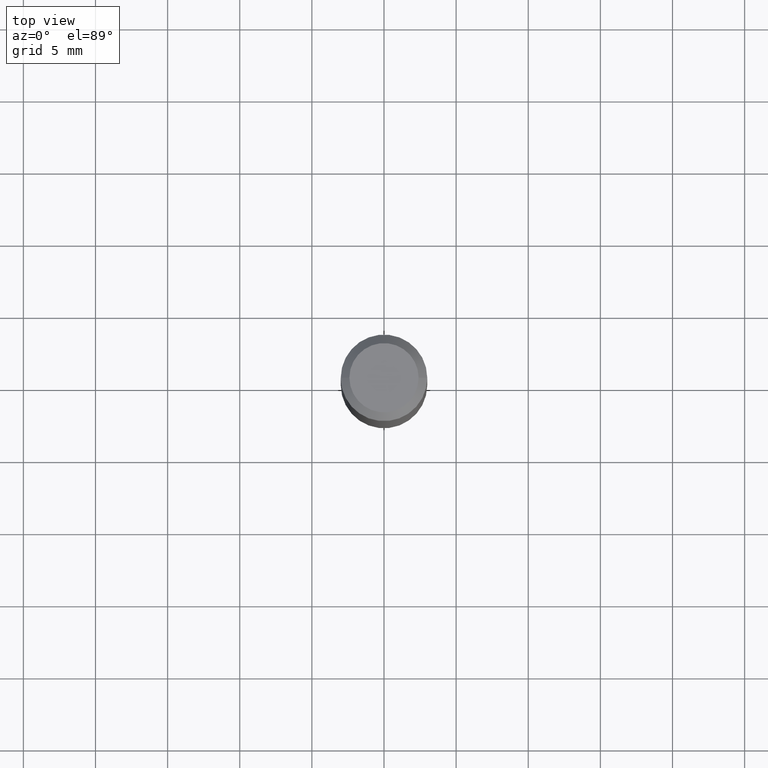
[diagram: clean part render]
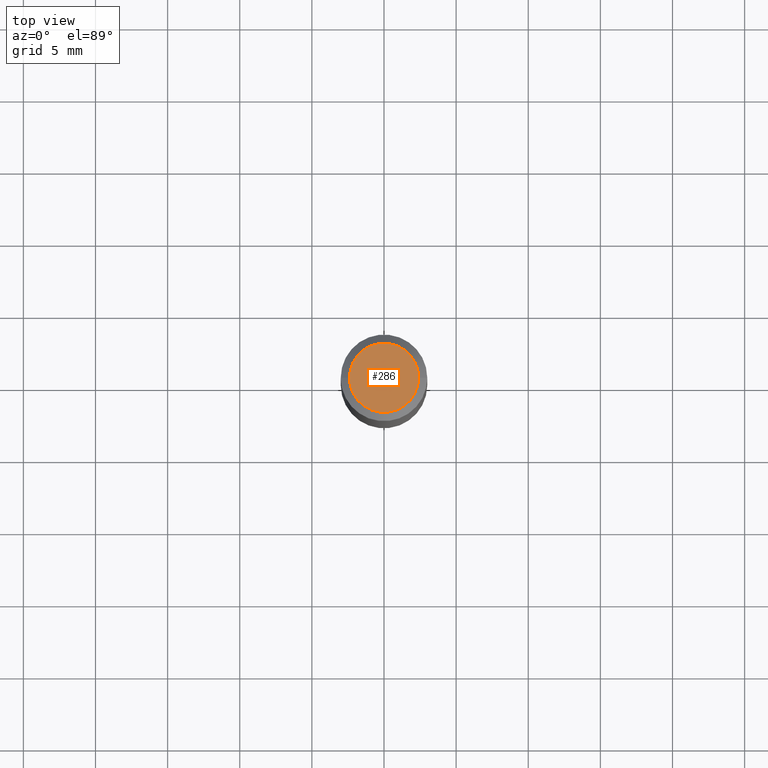
[diagram: same view with one face highlighted and labeled with its STEP entity id]
A machine part, top view. The second image highlights one B-rep face of the part: STEP entity #286.
In plain terms, the highlighted planar face has unit normal (0, -0, -1).
Its self-contained STEP definition (entity closure, byte-faithful):
#15 = CIRCLE ( 'NONE', #155, 0.09447999999999998066 ) ;
#29 = CARTESIAN_POINT ( 'NONE',  ( 0.09447999999999998066, -7.704367267948738690E-16, -3.085620075131172158E-17 ) ) ;
#48 = EDGE_CURVE ( 'NONE', #388, #414, #211, .T. ) ;
#57 = CARTESIAN_POINT ( 'NONE',  ( -0.09447999999999998066, 7.009847083995354710E-16, -3.085620075132147757E-17 ) ) ;
#63 = CARTESIAN_POINT ( 'NONE',  ( 7.545787641473140628E-46, -1.077338491108201769E-31, -3.085620075131671975E-17 ) ) ;
#65 = AXIS2_PLACEMENT_3D ( 'NONE', #447, #334, #130 ) ;
#66 = ORIENTED_EDGE ( 'NONE', *, *, #48, .T. ) ;
#105 = DIRECTION ( 'NONE',  ( -2.445468806185136597E-29, 3.491481338843145583E-15, 1.000000000000000000 ) ) ;
#130 = DIRECTION ( 'NONE',  ( -1.000000000000000000, 6.982962677686265922E-15, -4.876176775795935793E-29 ) ) ;
#155 = AXIS2_PLACEMENT_3D ( 'NONE', #63, #105, #312 ) ;
#211 = CIRCLE ( 'NONE', #517, 0.09447999999999998066 ) ;
#213 = PLANE ( 'NONE',  #65 ) ;
#224 = EDGE_LOOP ( 'NONE', ( #66, #345 ) ) ;
#249 = DIRECTION ( 'NONE',  ( -2.445468806185136597E-29, 3.491481338843145583E-15, 1.000000000000000000 ) ) ;
#286 = ADVANCED_FACE ( 'NONE', ( #412 ), #213, .F. ) ;
#312 = DIRECTION ( 'NONE',  ( 1.000000000000000000, -6.982962677686267499E-15, 4.875432709231658792E-29 ) ) ;
#321 = CARTESIAN_POINT ( 'NONE',  ( 7.545787641473140628E-46, -1.077338491108201769E-31, -3.085620075131671975E-17 ) ) ;
#334 = DIRECTION ( 'NONE',  ( 2.438088387897960049E-29, -3.491481338843145188E-15, -1.000000000000000000 ) ) ;
#345 = ORIENTED_EDGE ( 'NONE', *, *, #430, .T. ) ;
#388 = VERTEX_POINT ( 'NONE', #57 ) ;
#412 = FACE_OUTER_BOUND ( 'NONE', #224, .T. ) ;
#414 = VERTEX_POINT ( 'NONE', #29 ) ;
#430 = EDGE_CURVE ( 'NONE', #414, #388, #15, .T. ) ;
#447 = CARTESIAN_POINT ( 'NONE',  ( 3.772893820736570314E-46, -5.386692455541008845E-32, -1.542810037565835988E-17 ) ) ;
#481 = DIRECTION ( 'NONE',  ( 1.000000000000000000, -6.982962677686267499E-15, 4.875432709231658792E-29 ) ) ;
#517 = AXIS2_PLACEMENT_3D ( 'NONE', #321, #249, #481 ) ;